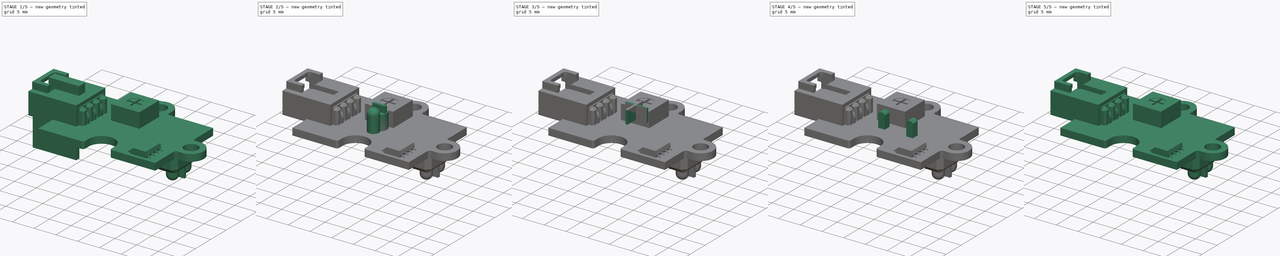
[diagram: build sequence overview — one tinted view per stage of 5, left to right]
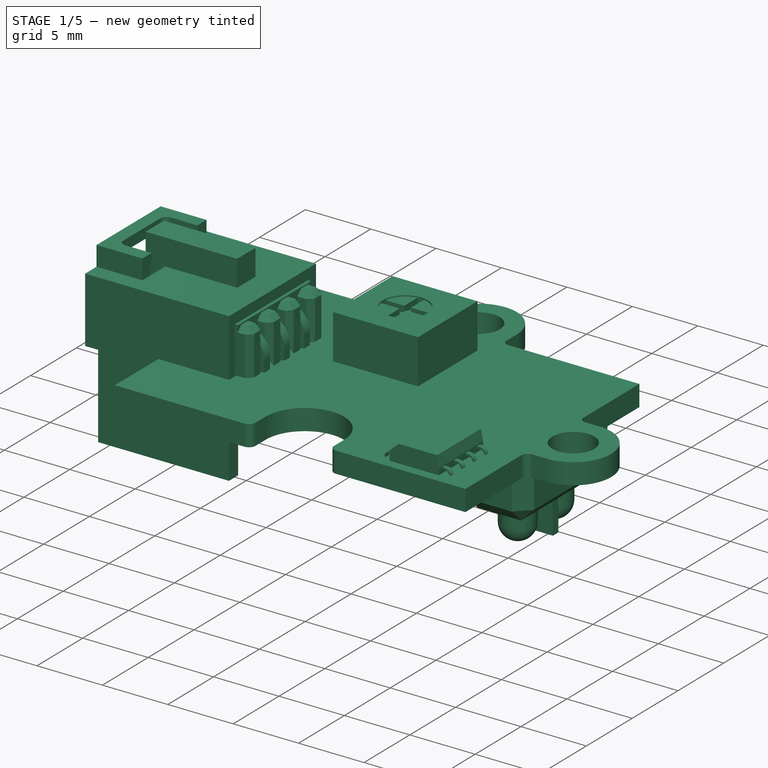
[diagram: stage 1 of 5 — iso view after this stage's code; geometry added in this stage tinted green]
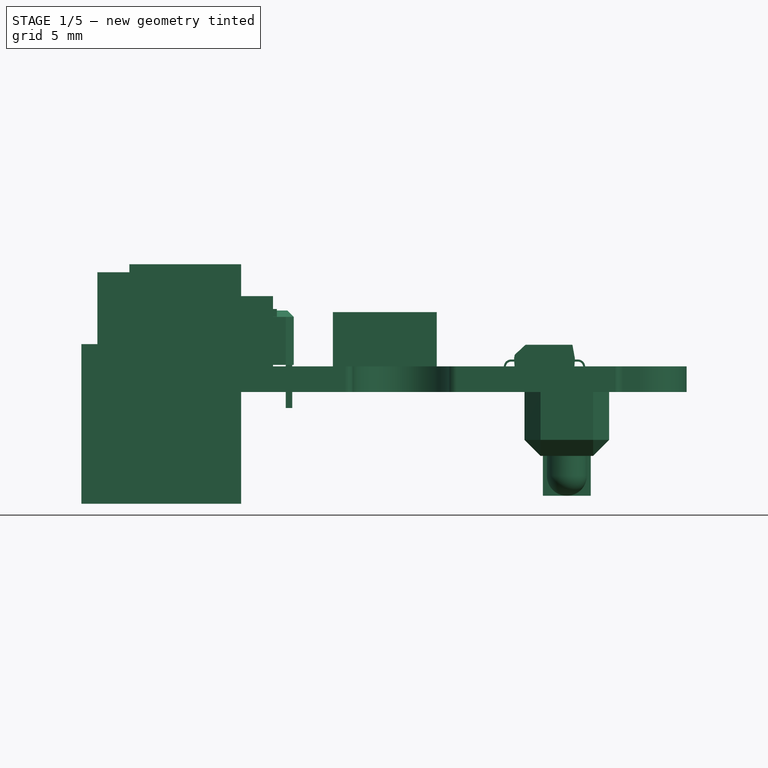
[diagram: stage 1 of 5 — front view after this stage's code; geometry added in this stage tinted green]
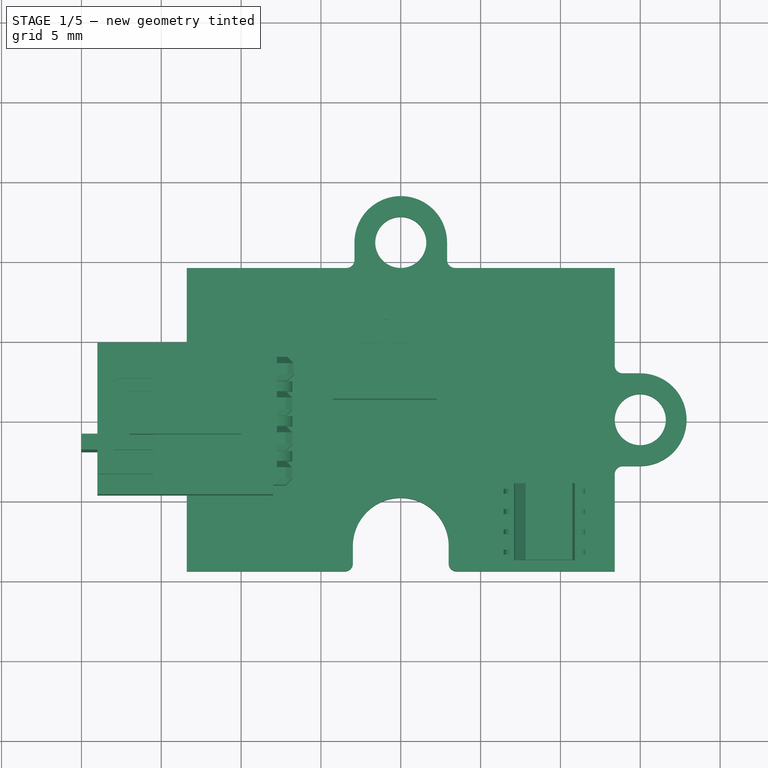
[diagram: stage 1 of 5 — top view after this stage's code; geometry added in this stage tinted green]
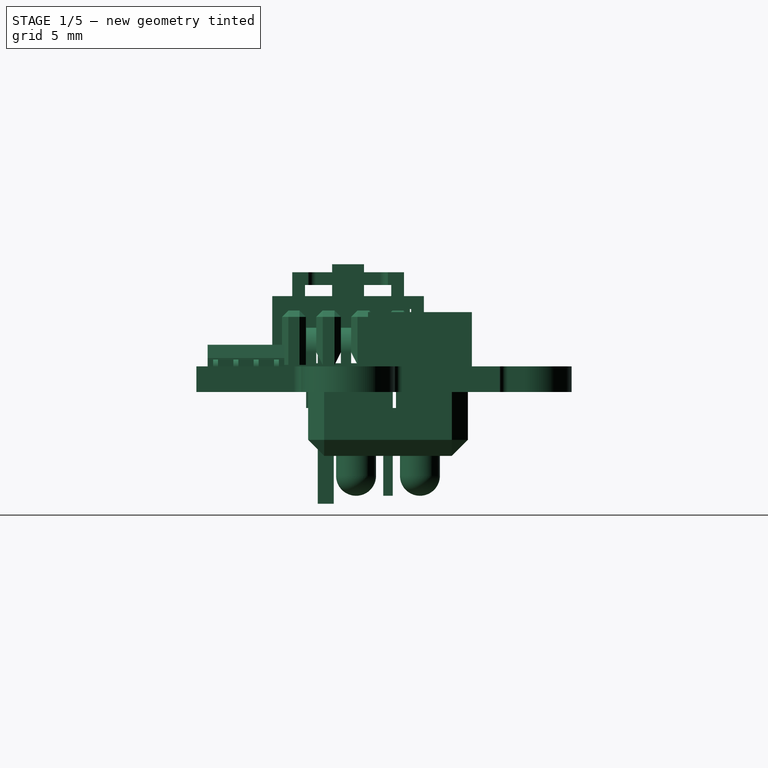
[diagram: stage 1 of 5 — right view after this stage's code; geometry added in this stage tinted green]
FCSTD DOCUMENT  (FreeCAD 0.14R3702 (Git))
Label: octopus-IR-sensor
License: CC-BY 3.0
LicenseURL: http://creativecommons.org/licenses/by/3.0/
objects: Part::Box×13, Part::MultiFuse×8, Part::Cut×7, Sketcher::SketchObject×5, Part::Chamfer×5, PartDesign::Pad×3, Part::FeaturePython×2, Part::Cylinder×2, Part::Compound×2, Part::Thickness×1, Part::Fillet×1, Part::Sweep×1
note: 53 computed .brp shape members not serialized (recipe doc carries the construction recipe); baked Part::Feature solids carry a one-line shape summary decoded from their .brp

FEATURE [Sketcher::SketchObject] Sketch
  sketch-geometry (14):
    g0: LineSegment StartX=-13.5 StartY=9.5 StartZ=0 EndX=-3.86432 EndY=9.5 EndZ=0
    g1: LineSegment StartX=13.5 StartY=9.5 StartZ=0 EndX=13.5 EndY=2.29783 EndZ=0
    g2: LineSegment StartX=13.5 StartY=-9.5 StartZ=0 EndX=1.09808 EndY=-9.5 EndZ=0
    g3: LineSegment StartX=-13.5 StartY=-9.5 StartZ=0 EndX=-13.5 EndY=-2.53772 EndZ=0
    g4: Circle CenterX=-1.5 CenterY=11 CenterZ=0 NormalX=0 NormalY=0 NormalZ=1 Radius=1.6
    g5: ArcOfCircle CenterX=-1.5 CenterY=11 CenterZ=0 NormalX=0 NormalY=0 NormalZ=1 Radius=2.8 StartAngle=5.71783 EndAngle=9.99013
    g6: LineSegment StartX=0.864318 StartY=9.5 StartZ=0 EndX=13.5 EndY=9.5 EndZ=0
    g7: Circle CenterX=15.1 CenterY=0 CenterZ=0 NormalX=0 NormalY=0 NormalZ=1 Radius=1.6
    g8: ArcOfCircle CenterX=15.1 CenterY=0 CenterZ=0 NormalX=0 NormalY=0 NormalZ=1 Radius=2.8 StartAngle=4.10414 EndAngle=8.46223
    g9: LineSegment StartX=13.5 StartY=-2.29783 StartZ=0 EndX=13.5 EndY=-9.5 EndZ=0
    g10: ArcOfCircle CenterX=-1.5 CenterY=-8 CenterZ=0 NormalX=0 NormalY=0 NormalZ=1 Radius=3 StartAngle=5.75959 EndAngle=9.94838
    g11: LineSegment StartX=-4.09808 StartY=-9.5 StartZ=0 EndX=-13.5 EndY=-9.5 EndZ=0
    g12: ArcOfCircle CenterX=-11.9 CenterY=0 CenterZ=0 NormalX=0 NormalY=0 NormalZ=1 Radius=3 StartAngle=4.14985 EndAngle=8.41652
    g13: LineSegment StartX=-13.5 StartY=2.53772 StartZ=0 EndX=-13.5 EndY=9.5 EndZ=0
  constraints (40):
    c: Coincident(g6,g1)
    c: Coincident(g9,g2)
    c: Coincident(g11,g3)
    c: Coincident(g13,g0)
    c: Horizontal(g0)
    c: Horizontal(g2)
    c: Vertical(g1)
    c: Vertical(g3)
    c: Symmetric(g0,g9,g-1)
    c: Radius(g4) = 1.6
    c: DistanceX(g4,g6) = 15
    c: Coincident(g5,g4)
    c: Radius(g5) = 2.8
    c: Tangent(g0,g6)
    c: Coincident(g0,g5)
    c: PointOnObject(g6,g5)
    c: DistanceY(g-1,g4) = 11
    c: DistanceX(g-1,g8) = 15.1
    c: Equal(g7,g4)
    c: Equal(g8,g5)
    c: Tangent(g1,g9)
    c: Coincident(g8,g9)
    c: Coincident(g8,g1)
    c: Coincident(g5,g6)
    c: Coincident(g7,g8)
    c: PointOnObject(g7,g-1)
    c: Radius(g10) = 3
    c: DistanceX(g-1,g2) = 13.5
    c: Tangent(g2,g11)
    c: DistanceX(g10,g2) = 15
    c: DistanceY(g-1,g10) = -8
    c: Coincident(g10,g2)
    c: Coincident(g10,g11)
    c: DistanceX(g-1,g12) = -11.9
    c: Radius(g12) = 3
    c: PointOnObject(g12,g-1)
    c: DistanceY(g-1,g3) = -9.5
    c: Tangent(g3,g13)
    c: Coincident(g12,g3)
    c: Coincident(g12,g13)
FEATURE [Sketcher::SketchObject] Sketch001
  Placement = pos=(-19,0,4) rot=(0.707107,0,0.707107;3.14159rad)
  sketch-geometry (16):
    g0: LineSegment StartX=-3 StartY=4.75 StartZ=0 EndX=-3 EndY=-4.75 EndZ=0
    g1: LineSegment StartX=-3 StartY=-4.75 StartZ=0 EndX=2 EndY=-4.75 EndZ=0
    g2: LineSegment StartX=2 StartY=-4.75 StartZ=0 EndX=2 EndY=-3.5 EndZ=0
    g3: LineSegment StartX=2 StartY=-3.5 StartZ=0 EndX=3.5 EndY=-3.5 EndZ=0
    g4: LineSegment StartX=3.5 StartY=-3.5 StartZ=0 EndX=3.5 EndY=3.5 EndZ=0
    g5: LineSegment StartX=3.5 StartY=3.5 StartZ=0 EndX=2 EndY=3.5 EndZ=0
    g6: LineSegment StartX=2 StartY=3.5 StartZ=0 EndX=2 EndY=4.75 EndZ=0
    g7: LineSegment StartX=2 StartY=4.75 StartZ=0 EndX=-3 EndY=4.75 EndZ=0
    g8: LineSegment StartX=-2.2 StartY=3.95 StartZ=0 EndX=1.2 EndY=3.95 EndZ=0
    g9: LineSegment StartX=1.2 StartY=3.95 StartZ=0 EndX=1.2 EndY=2.7 EndZ=0
    g10: LineSegment StartX=1.2 StartY=2.7 StartZ=0 EndX=2.7 EndY=2.7 EndZ=0
    g11: LineSegment StartX=2.7 StartY=2.7 StartZ=0 EndX=2.7 EndY=-2.7 EndZ=0
    g12: LineSegment StartX=2.7 StartY=-2.7 StartZ=0 EndX=1.2 EndY=-2.7 EndZ=0
    g13: LineSegment StartX=1.2 StartY=-2.7 StartZ=0 EndX=1.2 EndY=-3.95 EndZ=0
    g14: LineSegment StartX=1.2 StartY=-3.95 StartZ=0 EndX=-2.2 EndY=-3.95 EndZ=0
    g15: LineSegment StartX=-2.2 StartY=-3.95 StartZ=0 EndX=-2.2 EndY=3.95 EndZ=0
  constraints (45):
    c: Vertical(g0)
    c: Coincident(g0,g1)
    c: Horizontal(g1)
    c: Coincident(g1,g2)
    c: Coincident(g2,g3)
    c: Coincident(g3,g4)
    c: Vertical(g4)
    c: Coincident(g4,g5)
    c: Coincident(g5,g6)
    c: Vertical(g6)
    c: Coincident(g6,g7)
    c: Coincident(g7,g0)
    c: Horizontal(g7)
    c: Symmetric(g6,g1,g-1)
    c: Symmetric(g5,g2,g-1)
    c: Symmetric(g4,g3,g-1)
    c: Horizontal(g5)
    c: DistanceX(g7) = -5
    c: DistanceX(g5) = -1.5
    c: DistanceY(g0) = -9.5
    c: DistanceY(g4) = 7
    c: DistanceX(g-1,g0) = -3
    c: Horizontal(g8)
    c: Coincident(g8,g9)
    c: Vertical(g9)
    c: Coincident(g9,g10)
    c: Horizontal(g10)
    c: Coincident(g10,g11)
    c: Vertical(g11)
    c: Coincident(g11,g12)
    c: Horizontal(g12)
    c: Coincident(g12,g13)
    c: Vertical(g13)
    c: Coincident(g13,g14)
    c: Horizontal(g14)
    c: Coincident(g14,g15)
    c: Coincident(g15,g8)
    c: Vertical(g15)
    c: Symmetric(g8,g13,g-1)
    c: Symmetric(g9,g12,g-1)
    c: DistanceY(g0,g8) = -0.8
    c: DistanceX(g8,g5) = 0.8
    c: DistanceY(g5,g9) = -0.8
    c: DistanceX(g10,g4) = 0.8
    c: DistanceX(g0,g8) = 0.8
FEATURE [PartDesign::Pad] Pad001
  Length = 3.5
  Length2 = 100
  Placement = pos=(-19,0,4) rot=(0.707107,0,0.707107;3.14159rad)
  Sketch = -> Sketch001
  Type = 0
FEATURE [Part::Box] Box  label="Cubo"
  Height = 5
  Length = 5
  Placement = pos=(-18,-2.5,6.5) rot=(0,0,1;0rad)
  Width = 5
FEATURE [Part::Fillet] Fillet006
  Base = -> Box
  Edges = 2 edges r=0.5: [Edge1,Edge3]
FEATURE [Part::Cut] Cut
  Base = -> Pad001
  Tool = -> Fillet006
FEATURE [Part::Box] Box002  label="Cubo002"
  Height = 3
  Length = 7
  Placement = pos=(-17,-1,5) rot=(0,0,1;0rad)
  Width = 2
FEATURE [Part::Chamfer] Chamfer
  Base = -> Cut
  Edges = 8 edges r=0.1: [Edge16,Edge17,Edge18,Edge19,Edge20,Edge21,Edge22,Edge23]
FEATURE [Part::Box] Box014  label="slot"
  Height = 10
  Length = 10
  Placement = pos=(-20,-1.9,-7) rot=(0,0,1;0rad)
  Width = 1
FEATURE [Sketcher::SketchObject] Sketch004  label="octopus-pcb-base-sketch"
  sketch-geometry (36):
    g0: LineSegment StartX=-13.4 StartY=9.5 StartZ=0 EndX=-3.4 EndY=9.5 EndZ=0
    g1: LineSegment StartX=13.4 StartY=9.5 StartZ=0 EndX=13.4 EndY=3.4 EndZ=0
    g2: LineSegment StartX=13.4 StartY=-9.5 StartZ=0 EndX=3.5 EndY=-9.5 EndZ=0
    g3: LineSegment StartX=-13.4 StartY=-9.5 StartZ=0 EndX=-13.4 EndY=-3.5 EndZ=0
    g4: Circle CenterX=0 CenterY=11.1 CenterZ=0 NormalX=0 NormalY=0 NormalZ=1 Radius=1.6
    g5: LineSegment StartX=3.4 StartY=9.5 StartZ=0 EndX=13.4 EndY=9.5 EndZ=0
    g6: Circle CenterX=15 CenterY=0 CenterZ=0 NormalX=0 NormalY=0 NormalZ=1 Radius=1.6
    g7: LineSegment StartX=13.4 StartY=-3.4 StartZ=0 EndX=13.4 EndY=-9.5 EndZ=0
    g8: LineSegment StartX=-3.5 StartY=-9.5 StartZ=0 EndX=-13.4 EndY=-9.5 EndZ=0
    g9: LineSegment StartX=-13.4 StartY=3.5 StartZ=0 EndX=-13.4 EndY=9.5 EndZ=0
    g10: LineSegment [constr] StartX=-2.9 StartY=11.1 StartZ=0 EndX=2.9 EndY=11.1 EndZ=0
    g11: ArcOfCircle CenterX=0 CenterY=11.1 CenterZ=0 NormalX=0 NormalY=0 NormalZ=1 Radius=2.9 StartAngle=0 EndAngle=3.14159
    g12: LineSegment StartX=2.9 StartY=11.1 StartZ=0 EndX=2.9 EndY=10 EndZ=0
    g13: LineSegment StartX=-2.9 StartY=11.1 StartZ=0 EndX=-2.9 EndY=10 EndZ=0
    g14: LineSegment [constr] StartX=15 StartY=2.9 StartZ=0 EndX=15 EndY=-2.9 EndZ=0
    g15: LineSegment StartX=13.9 StartY=2.9 StartZ=0 EndX=15 EndY=2.9 EndZ=0
    g16: LineSegment StartX=13.9 StartY=-2.9 StartZ=0 EndX=15 EndY=-2.9 EndZ=0
    g17: ArcOfCircle CenterX=15 CenterY=0 CenterZ=0 NormalX=0 NormalY=0 NormalZ=1 Radius=2.9 StartAngle=4.71239 EndAngle=7.85398
    g18: LineSegment [constr] StartX=-3 StartY=-7.9 StartZ=0 EndX=3 EndY=-7.9 EndZ=0
    g19: ArcOfCircle CenterX=0 CenterY=-7.9 CenterZ=0 NormalX=0 NormalY=0 NormalZ=1 Radius=3 StartAngle=0 EndAngle=3.14159
    g20: Circle [constr] CenterX=0 CenterY=-7.9 CenterZ=0 NormalX=0 NormalY=0 NormalZ=1 Radius=1.6
    g21: LineSegment StartX=-3 StartY=-7.9 StartZ=0 EndX=-3 EndY=-9 EndZ=0
    g22: LineSegment StartX=3 StartY=-7.9 StartZ=0 EndX=3 EndY=-9 EndZ=0
    g23: ArcOfCircle CenterX=-11.8 CenterY=0 CenterZ=0 NormalX=0 NormalY=0 NormalZ=1 Radius=3 StartAngle=4.71239 EndAngle=7.85398
    g24: LineSegment [constr] StartX=-11.8 StartY=3 StartZ=0 EndX=-11.8 EndY=-3 EndZ=0
    g25: LineSegment StartX=-12.9 StartY=3 StartZ=0 EndX=-11.8 EndY=3 EndZ=0
    g26: LineSegment StartX=-12.9 StartY=-3 StartZ=0 EndX=-11.8 EndY=-3 EndZ=0
    g27: Circle [constr] CenterX=-11.8 CenterY=0 CenterZ=0 NormalX=0 NormalY=0 NormalZ=1 Radius=1.6
    g28: ArcOfCircle CenterX=3.4 CenterY=10 CenterZ=0 NormalX=0 NormalY=0 NormalZ=1 Radius=0.5 StartAngle=3.14159 EndAngle=4.71239
    g29: ArcOfCircle CenterX=-3.4 CenterY=10 CenterZ=0 NormalX=0 NormalY=0 NormalZ=1 Radius=0.5 StartAngle=4.71239 EndAngle=6.28319
    g30: ArcOfCircle CenterX=13.9 CenterY=3.4 CenterZ=0 NormalX=0 NormalY=0 NormalZ=1 Radius=0.5 StartAngle=3.14159 EndAngle=4.71239
    g31: ArcOfCircle CenterX=13.9 CenterY=-3.4 CenterZ=0 NormalX=0 NormalY=0 NormalZ=1 Radius=0.5 StartAngle=1.5708 EndAngle=3.14159
    g32: ArcOfCircle CenterX=3.5 CenterY=-9 CenterZ=0 NormalX=0 NormalY=0 NormalZ=1 Radius=0.5 StartAngle=3.14159 EndAngle=4.71239
    g33: ArcOfCircle CenterX=-3.5 CenterY=-9 CenterZ=0 NormalX=0 NormalY=0 NormalZ=1 Radius=0.5 StartAngle=4.71239 EndAngle=6.28319
    g34: ArcOfCircle CenterX=-12.9 CenterY=-3.5 CenterZ=0 NormalX=0 NormalY=0 NormalZ=1 Radius=0.5 StartAngle=1.5708 EndAngle=3.14159
    g35: ArcOfCircle CenterX=-12.9 CenterY=3.5 CenterZ=0 NormalX=0 NormalY=0 NormalZ=1 Radius=0.5 StartAngle=3.14159 EndAngle=4.71239
  constraints (94):
    c: Coincident(g5,g1)
    c: Coincident(g7,g2)
    c: Coincident(g8,g3)
    c: Coincident(g9,g0)
    c: Horizontal(g0)
    c: Horizontal(g2)
    c: Vertical(g1)
    c: Vertical(g3)
    c: Radius(g4) = 1.6
    c: Tangent(g0,g5)
    c: Equal(g6,g4)
    c: Tangent(g1,g7)
    c: PointOnObject(g6,g-1)
    c: Tangent(g2,g8)
    c: Tangent(g3,g9)
    c: PointOnObject(g4,g-2)
    c: Symmetric(g1,g2,g-1)
    c: Symmetric(g1,g0,g-2)
    c: Tangent(g5,g4)
    c: Symmetric(g10,g10,g-2)
    c: PointOnObject(g4,g10)
    c: Coincident(g11,g10)
    c: Coincident(g10,g11)
    c: Coincident(g11,g4)
    c: Vertical(g12)
    c: Coincident(g12,g10)
    c: Vertical(g13)
    c: Coincident(g13,g10)
    c: DistanceX(g10,g10) = 5.8
    c: Vertical(g14)
    c: PointOnObject(g6,g14)
    c: Symmetric(g14,g14,g-1)
    c: Tangent(g6,g1)
    c: Horizontal(g15)
    c: Coincident(g15,g14)
    c: Horizontal(g16)
    c: Coincident(g16,g14)
    c: Equal(g10,g14)
    c: Coincident(g17,g6)
    c: Coincident(g17,g14)
    c: Coincident(g17,g14)
    c: Horizontal(g18)
    c: Symmetric(g18,g18,g-2)
    c: DistanceX(g18) = 6
    c: Coincident(g19,g18)
    c: Coincident(g19,g18)
    c: PointOnObject(g19,g18)
    c: PointOnObject(g20,g-2)
    c: Tangent(g20,g2)
    c: Coincident(g19,g20)
    c: Equal(g20,g4)
    c: Vertical(g22)
    c: Vertical(g21)
    c: Coincident(g21,g18)
    c: Coincident(g22,g18)
    c: PointOnObject(g23,g-1)
    c: Symmetric(g24,g24,g-1)
    c: Coincident(g24,g23)
    c: Coincident(g23,g24)
    c: Equal(g24,g18)
    c: PointOnObject(g23,g24)
    c: Horizontal(g25)
    c: Horizontal(g26)
    c: Coincident(g27,g23)
    c: Equal(g27,g20)
    c: Tangent(g27,g9)
    c: Coincident(g25,g23)
    c: Coincident(g26,g23)
    c: DistanceY(g1,g2) = -19
    c: DistanceX(g0,g1) = 26.8
    c: Tangent(g5,g28)
    c: Tangent(g12,g28)
    c: Radius(g28) = 0.5
    c: Tangent(g0,g29)
    c: Tangent(g13,g29)
    c: Equal(g29,g28)
    c: Tangent(g1,g30)
    c: Tangent(g15,g30)
    c: Tangent(g7,g31)
    c: Tangent(g16,g31)
    c: Equal(g28,g30)
    c: Equal(g30,g31)
    c: Tangent(g2,g32)
    c: Tangent(g22,g32)
    c: Tangent(g8,g33)
    c: Tangent(g21,g33)
    c: Equal(g31,g32)
    c: Equal(g32,g33)
    c: Tangent(g3,g34)
    c: Tangent(g26,g34)
    c: Tangent(g9,g35)
    c: Tangent(g25,g35)
    c: Equal(g35,g34)
    c: Equal(g34,g33)
FEATURE [PartDesign::Pad] Pad003  label="octopus-pcb-base"
  Length = 1.6
  Length2 = 100
  Sketch = -> Sketch004
  Type = 0
FEATURE [Part::Compound] Compound001  label="octopus-IR-sensor-final"
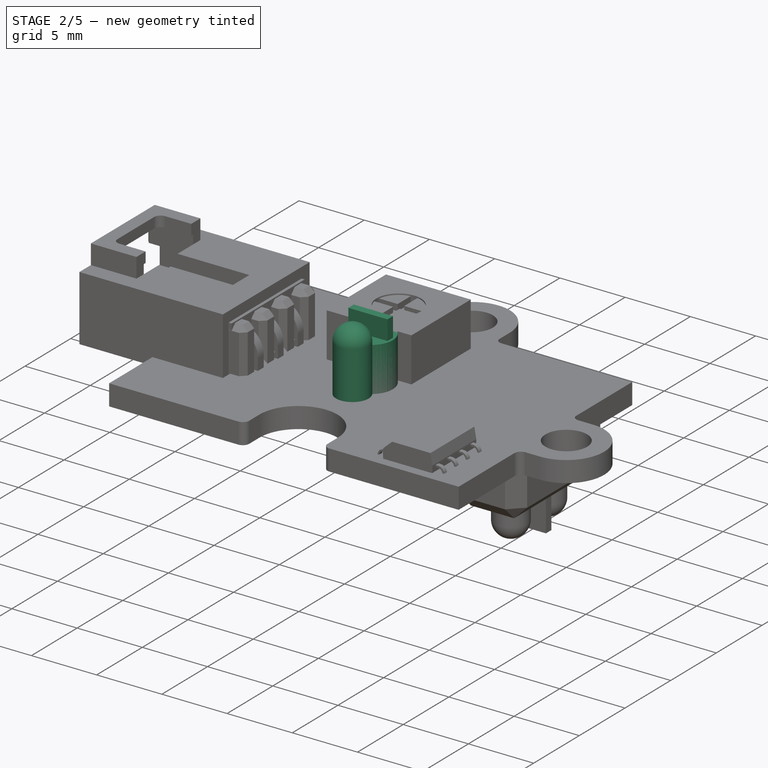
[diagram: stage 2 of 5 — iso view after this stage's code; geometry added in this stage tinted green]
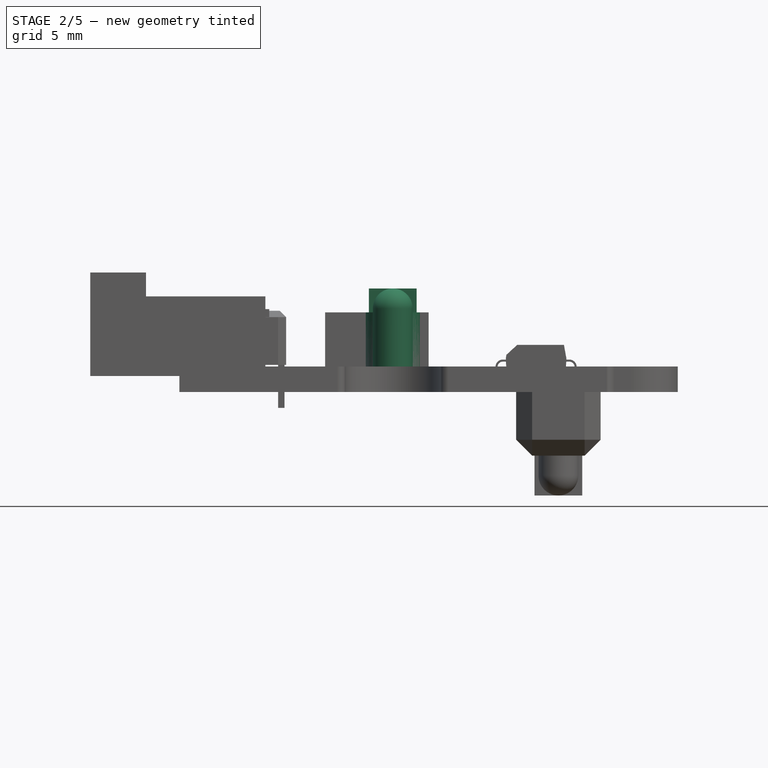
[diagram: stage 2 of 5 — front view after this stage's code; geometry added in this stage tinted green]
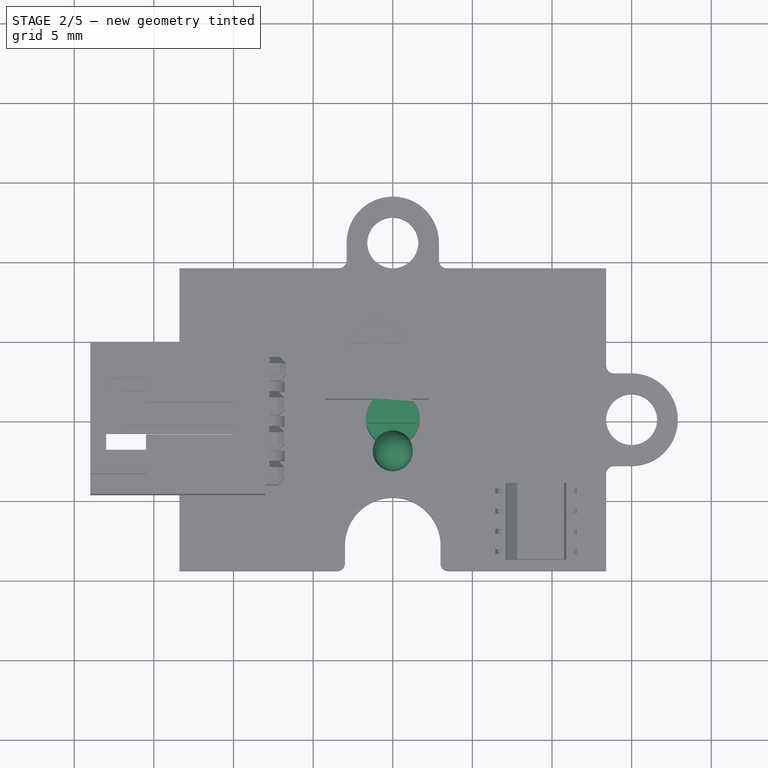
[diagram: stage 2 of 5 — top view after this stage's code; geometry added in this stage tinted green]
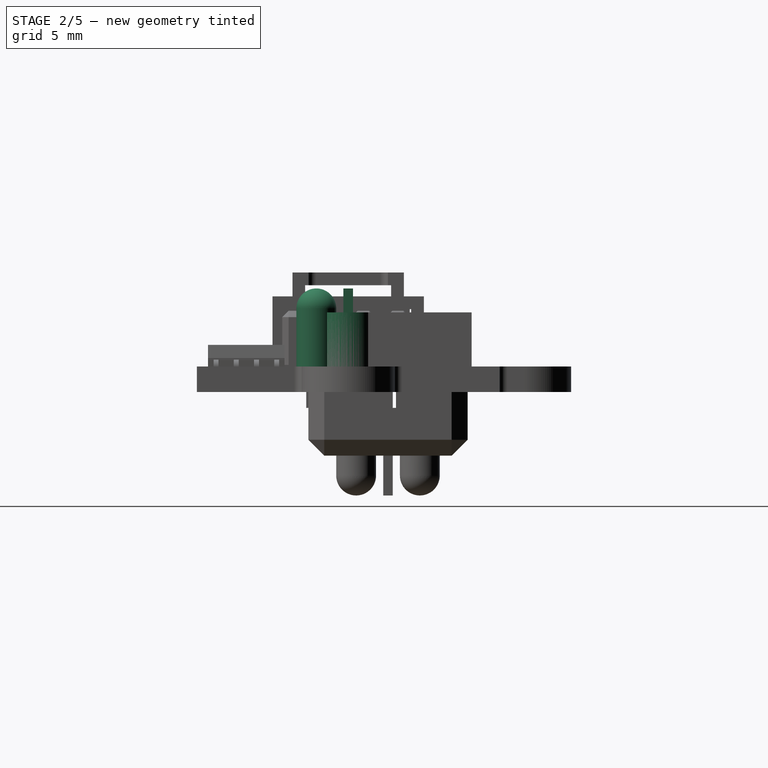
[diagram: stage 2 of 5 — right view after this stage's code; geometry added in this stage tinted green]
FEATURE [Part::Box] Box001  label="Cubo001"
  Height = 5
  Length = 7.5
  Width = 9.5
FEATURE [Part::Thickness] Thickness001
  Faces = -> Box001 [Face2,Face1]
  Intersection = false
  Join = 2
  Mode = 1
  Placement = pos=(-15.5,-4.75,1) rot=(0,0,1;0rad)
  SelfIntersection = false
  Value = -0.8
FEATURE [Part::Cut] Cut001
  Base = -> Thickness001
  Tool = -> Box002
FEATURE [Part::MultiFuse] Fusion  label="connector"
  Shapes = -> [Cut001,Chamfer]
FEATURE [Part::Cylinder] Cylinder  label="Cilindro"
  Angle = 360
  Height = 3.9
  Radius = 1.7
FEATURE [Part::Cylinder] Cylinder001  label="Cilindro001"
  Angle = 360
  Height = 5
  Radius = 1.7
FEATURE [Part::Box] Box013  label="Separador"
  Height = 6.5
  Length = 3
  Placement = pos=(-1.5,-0.3,0) rot=(0,0,1;0rad)
  Width = 0.6
FEATURE [Part::MultiFuse] Fusion007  label="Emisor"
  Placement = pos=(0,-2,0) rot=(0,0,1;0rad)
  Shapes = -> [Cylinder]
FEATURE [Part::Cut] Cut006  label="connector-final"
  Base = -> Fusion
  Tool = -> Box014
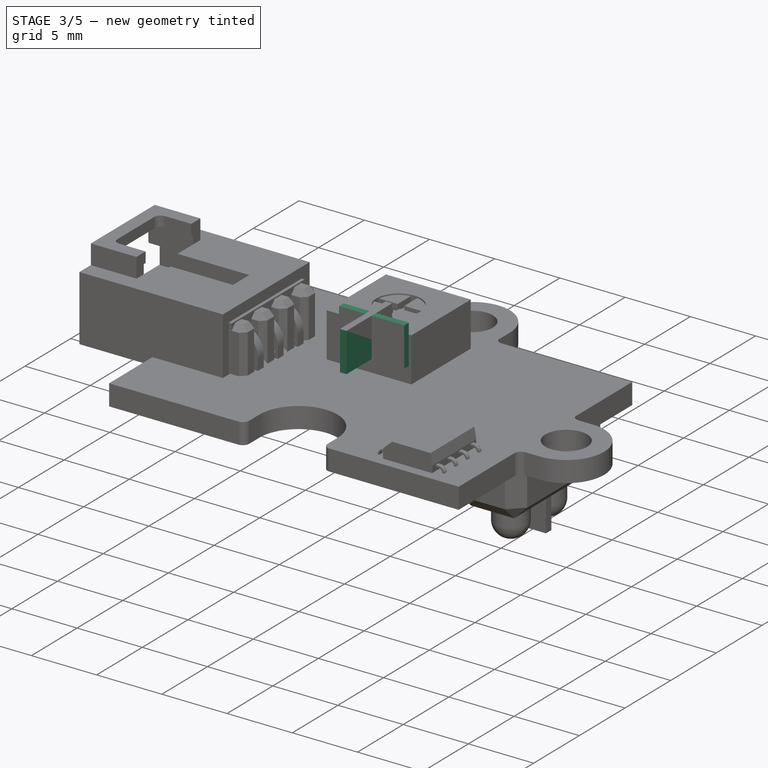
[diagram: stage 3 of 5 — iso view after this stage's code; geometry added in this stage tinted green]
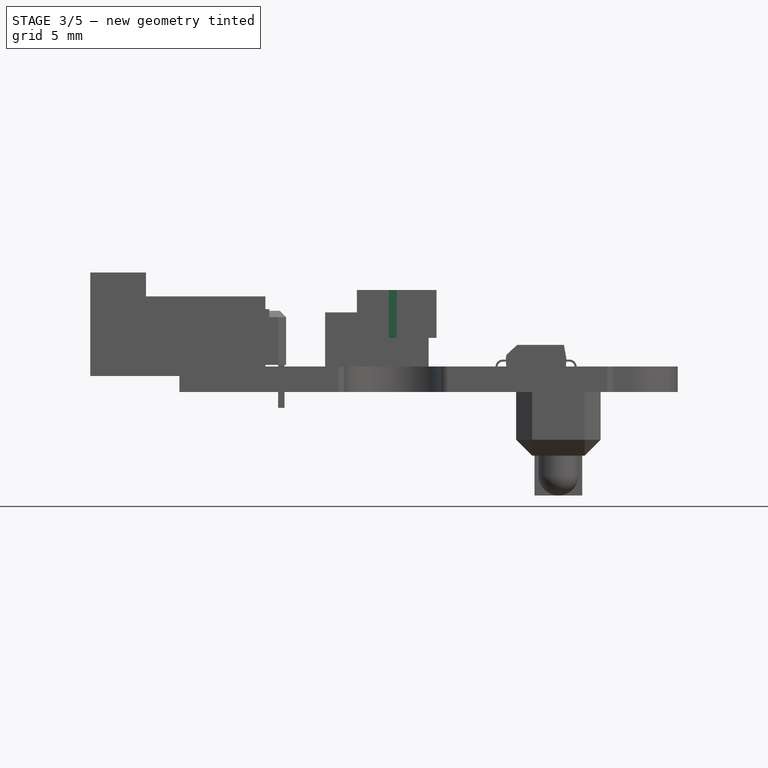
[diagram: stage 3 of 5 — front view after this stage's code; geometry added in this stage tinted green]
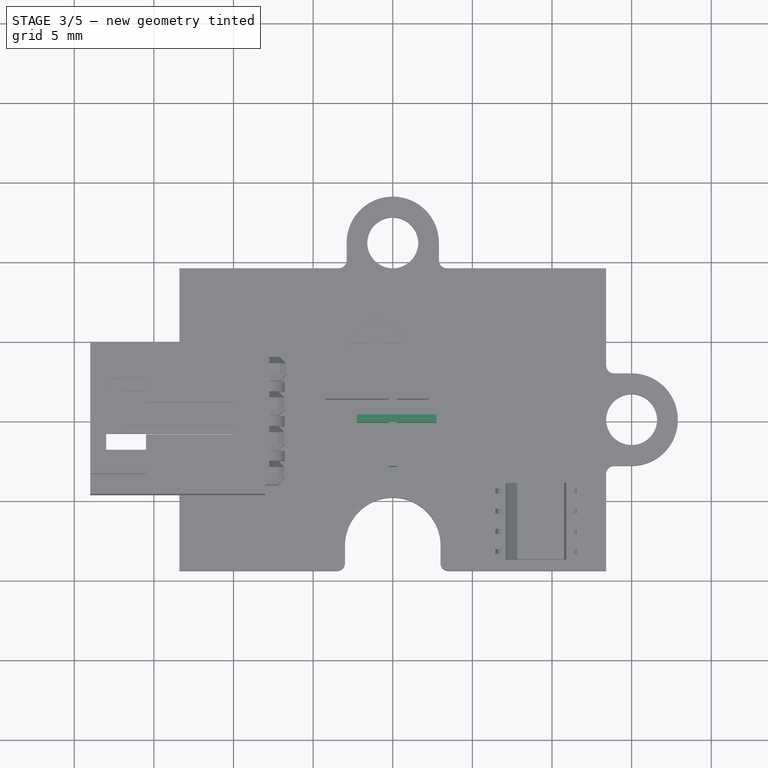
[diagram: stage 3 of 5 — top view after this stage's code; geometry added in this stage tinted green]
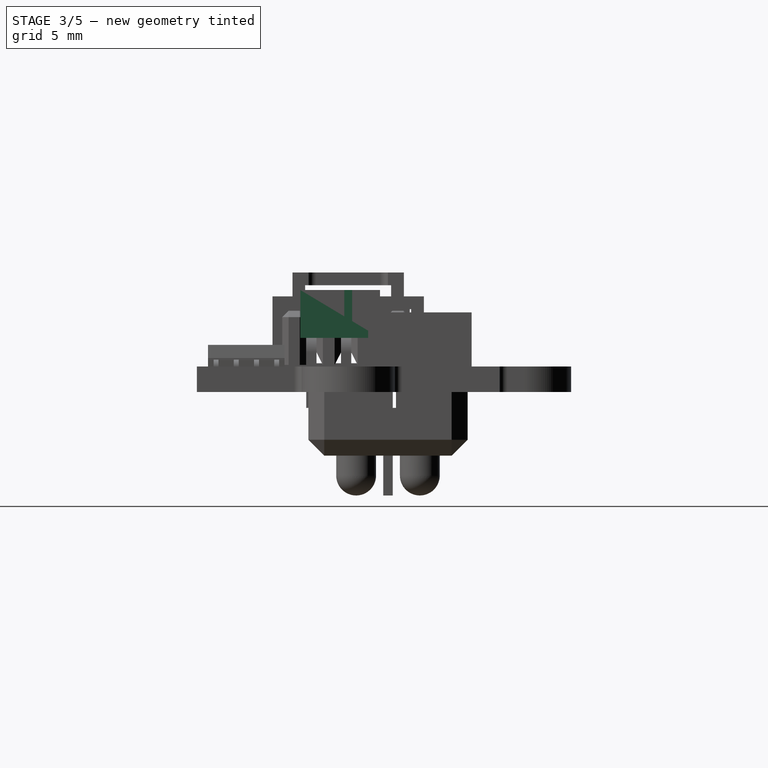
[diagram: stage 3 of 5 — right view after this stage's code; geometry added in this stage tinted green]
FEATURE [Sketcher::SketchObject] Sketch002
  sketch-geometry (4):
    g0: LineSegment StartX=-0.32 StartY=0.2 StartZ=0 EndX=0.32 EndY=0.2 EndZ=0
    g1: LineSegment StartX=0.32 StartY=0.2 StartZ=0 EndX=0.32 EndY=-0.2 EndZ=0
    g2: LineSegment StartX=0.32 StartY=-0.2 StartZ=0 EndX=-0.32 EndY=-0.2 EndZ=0
    g3: LineSegment StartX=-0.32 StartY=-0.2 StartZ=0 EndX=-0.32 EndY=0.2 EndZ=0
  constraints (12):
    c: Coincident(g0,g1)
    c: Coincident(g1,g2)
    c: Coincident(g2,g3)
    c: Coincident(g3,g0)
    c: Horizontal(g0)
    c: Horizontal(g2)
    c: Vertical(g1)
    c: Vertical(g3)
    c: Symmetric(g0,g0,g-2)
    c: Symmetric(g0,g2,g-1)
    c: DistanceX(g0) = 0.64
    c: DistanceY(g3) = 0.4
FEATURE [Sketcher::SketchObject] Sketch003
  Placement = pos=(0,0,0) rot=(0.57735,0.57735,0.57735;2.0944rad)
  sketch-geometry (3):
    g0: LineSegment StartX=0 StartY=0 StartZ=0 EndX=0 EndY=3.48702 EndZ=0
    g1: LineSegment StartX=-1.51298 StartY=5 StartZ=0 EndX=-10 EndY=5 EndZ=0
    g2: ArcOfCircle CenterX=-1.51298 CenterY=3.48702 CenterZ=0 NormalX=0 NormalY=0 NormalZ=1 Radius=1.51298 StartAngle=0 EndAngle=1.5708
  constraints (8):
    c: Coincident(g0,g-1)
    c: Vertical(g0)
    c: Horizontal(g1)
    c: Tangent(g1,g2)
    c: Tangent(g0,g2)
    c: DistanceY(g-1,g1) = 5
    c: DistanceX(g-1,g1) = -10
    c: Radius(g2) = 1.51298
FEATURE [Part::Sweep] Sweep
  Frenet = false
  Placement = pos=(-0.05,0,-1) rot=(0,0,1;0rad)
  Sections = -> [Sketch002]
  Solid = true
  Spine = -> Sketch003 [Edge1,Edge2,Edge3]
  Transition = 1
FEATURE [Part::Box] Box011  label="Cubo011"
  Height = 3
  Length = 0.5
  Placement = pos=(2.75,-0.25,3.4) rot=(0,0,1;1.5708rad)
  Width = 5
FEATURE [Part::Box] Box012  label="Cubo012"
  Height = 3
  Length = 0.5
  Placement = pos=(-0.25,-3,3.4) rot=(0,0,1;0rad)
  Width = 5
FEATURE [Part::FeaturePython] Array  # Draft array (typed FeaturePython)
  Angle = 360
  ArrayType = 0
  Axis = (0,0,1)
  Base = -> Sweep
  Center = (0,0,0)
  IntervalX = (1,0,0)
  IntervalY = (0,1.27,0)
  IntervalZ = (0,0,1)
  NumberPolar = 1
  NumberX = 1
  NumberY = 4
  NumberZ = 1
  Placement = pos=(0,-4.3,0) rot=(0,0,1;0rad)
FEATURE [PartDesign::Pad] Pad002
  Length = 4.8
  Length2 = 100
  Placement = pos=(0,0,0) rot=(1,0,0;1.5708rad)
  Sketch = -> Sketch
  Type = 0
FEATURE [Part::MultiFuse] Fusion004  label="LM358"
  Placement = pos=(9,-4,2) rot=(0,0,1;0rad)
  Shapes = -> [Pad002,Array]
FEATURE [Part::Cut] Cut005  label="Cuerpo"
  Base = -> Cut
FEATURE [Part::MultiFuse] Fusion006  label="Receptor"
  Placement = pos=(0,2,0) rot=(0,0,1;0rad)
  Shapes = -> [Cylinder001]
FEATURE [Part::MultiFuse] Fusion005  label="Sensor"
  Placement = pos=(10.4,2.5,0) rot=(0,1,0;3.14159rad)
  Shapes = -> [Fusion007,Box013,Fusion006,Cut005]
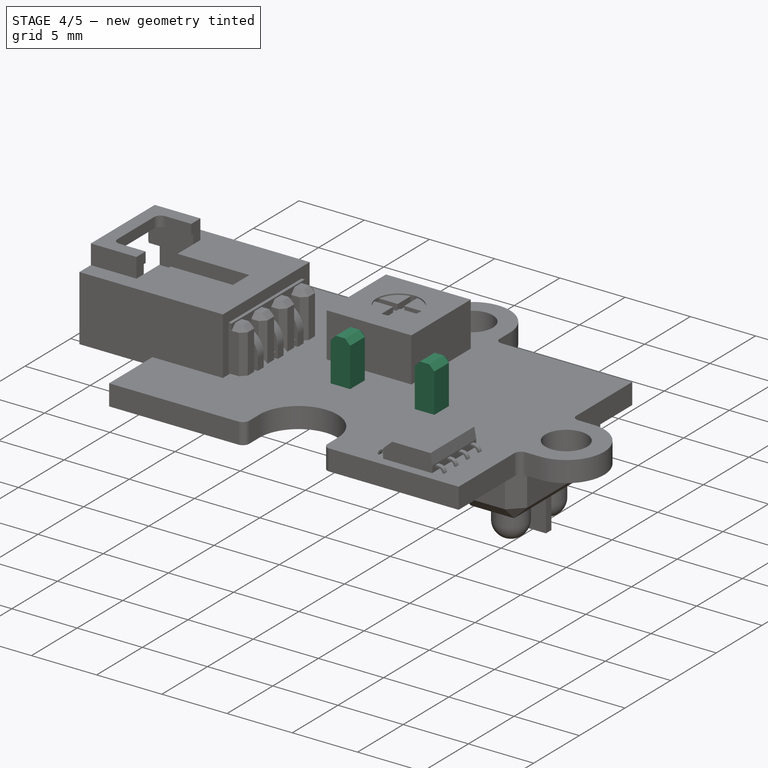
[diagram: stage 4 of 5 — iso view after this stage's code; geometry added in this stage tinted green]
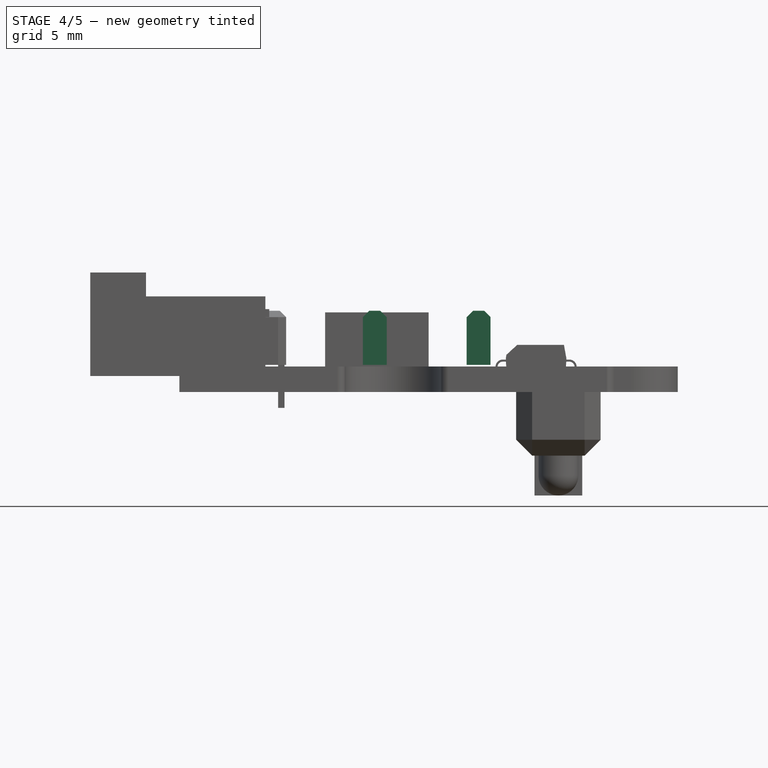
[diagram: stage 4 of 5 — front view after this stage's code; geometry added in this stage tinted green]
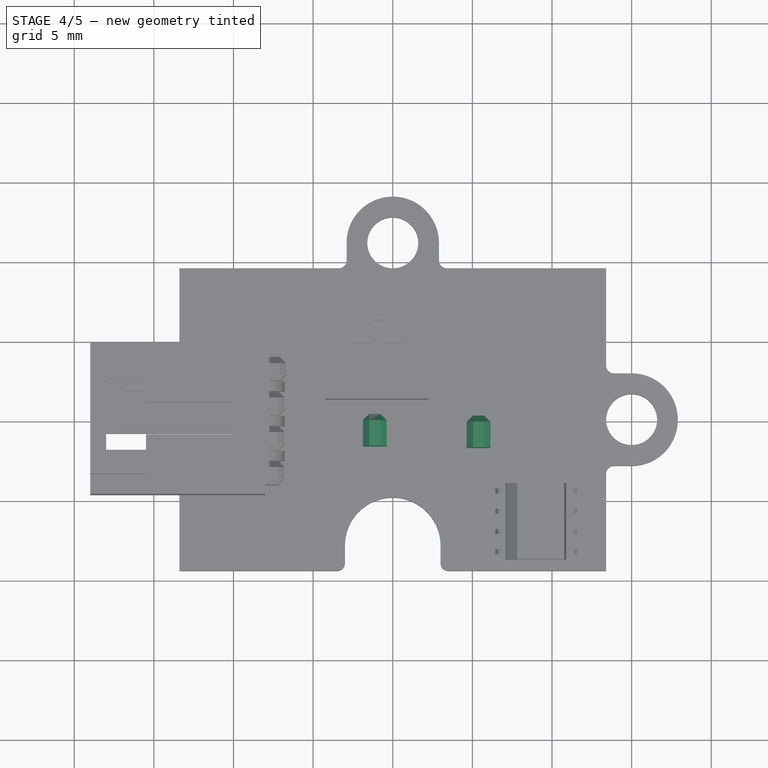
[diagram: stage 4 of 5 — top view after this stage's code; geometry added in this stage tinted green]
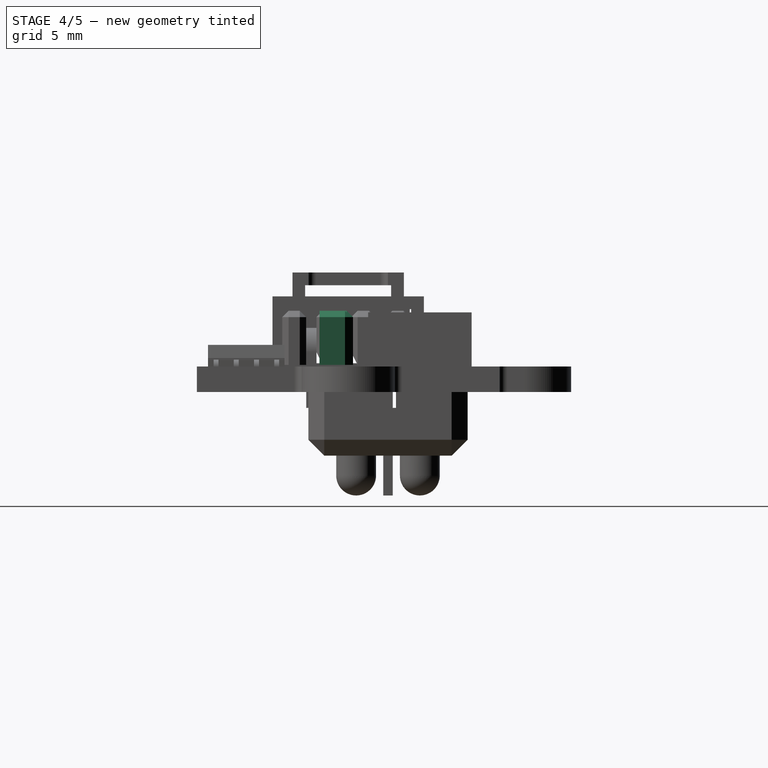
[diagram: stage 4 of 5 — right view after this stage's code; geometry added in this stage tinted green]
FEATURE [Part::Box] Box006  label="Cubo006"
  Height = 3.4
  Length = 1.5
  Placement = pos=(-1.14,-16.5,1.4) rot=(0,0,1;0rad)
  Width = 2
FEATURE [Part::Chamfer] Chamfer004
  Base = -> Box006
  Edges = 5 edges r=0.4: [Edge2,Edge3,Edge6,Edge7,Edge12]
  Placement = pos=(-0.74,14.8,0.3) rot=(0,0,1;0rad)
FEATURE [Part::Box] Box007  label="Cubo007"
  Height = 3.4
  Length = 1.5
  Placement = pos=(-1.14,-16.5,1.4) rot=(0,0,1;0rad)
  Width = 2
FEATURE [Part::Chamfer] Chamfer005
  Base = -> Box007
  Edges = 5 edges r=0.4: [Edge2,Edge3,Edge6,Edge7,Edge12]
  Placement = pos=(5.78,14.7,0.3) rot=(0,0,1;0rad)
FEATURE [Part::Box] Box010  label="Cubo010"
  Height = 4
  Length = 6.5
  Placement = pos=(-3.25,-3.25,0) rot=(0,0,1;0rad)
  Width = 6.5
FEATURE [Part::Cut] Cut002
  Base = -> Box010
  Tool = -> Cylinder001
FEATURE [Part::Cut] Cut003
  Base = -> Cylinder
  Tool = -> Box012
FEATURE [Part::Cut] Cut004
  Base = -> Cut003
  Tool = -> Box011
FEATURE [Part::MultiFuse] Fusion003  label="potentiometer"
  Placement = pos=(-1,4.5,1) rot=(0,0,1;0rad)
  Shapes = -> [Cut002,Cut004]
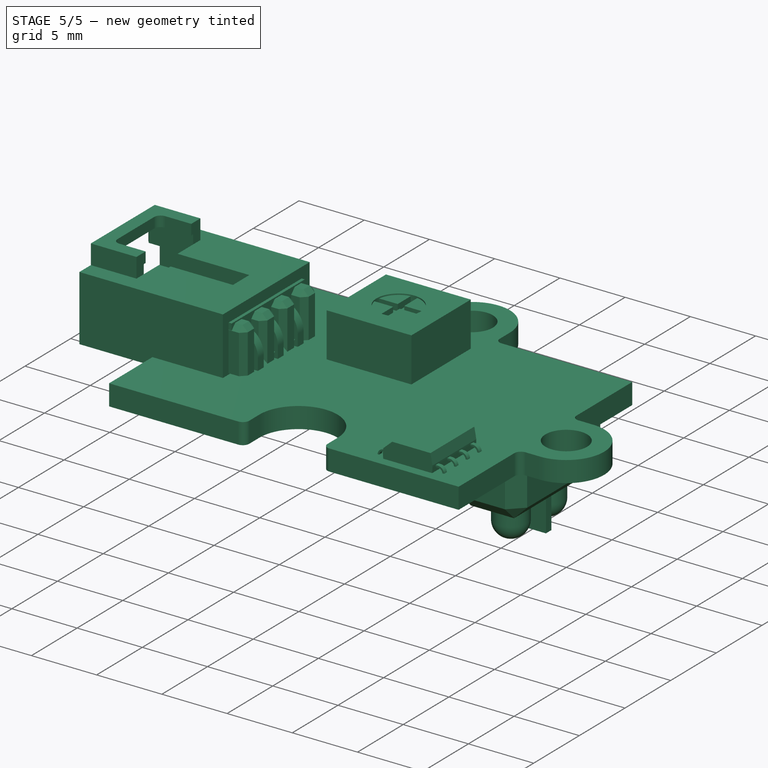
[diagram: stage 5 of 5 — iso view after this stage's code; geometry added in this stage tinted green]
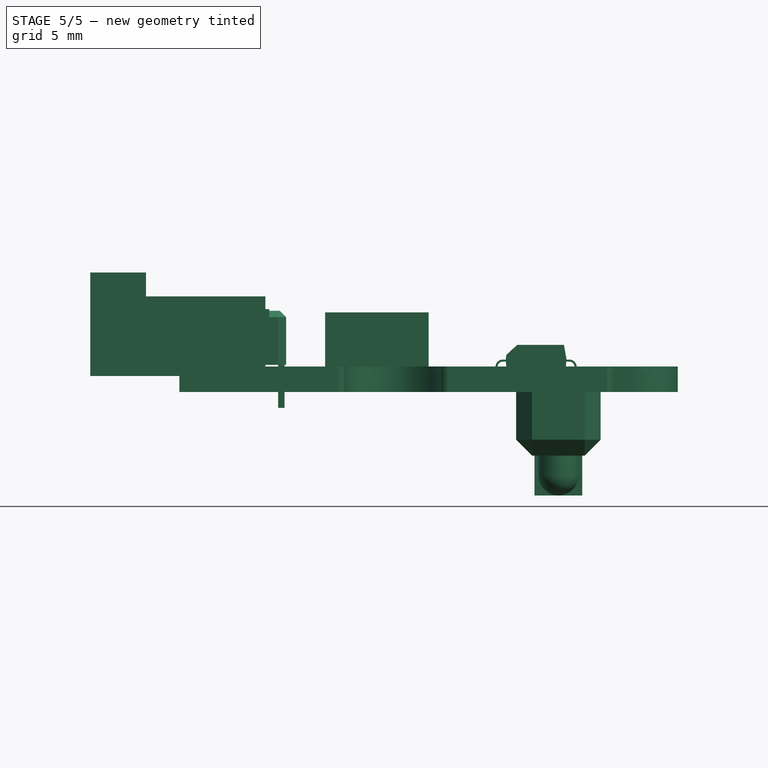
[diagram: stage 5 of 5 — front view after this stage's code; geometry added in this stage tinted green]
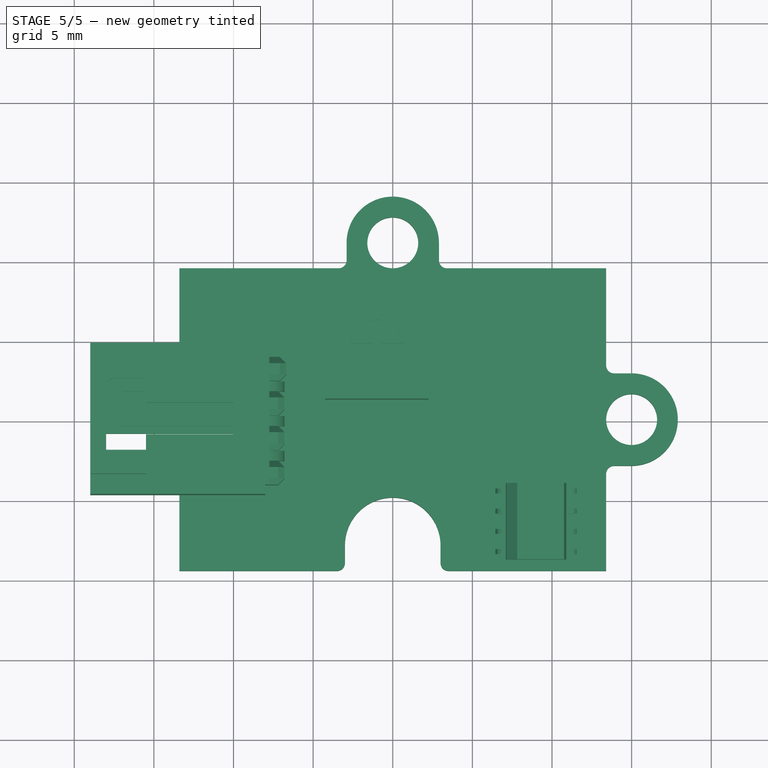
[diagram: stage 5 of 5 — top view after this stage's code; geometry added in this stage tinted green]
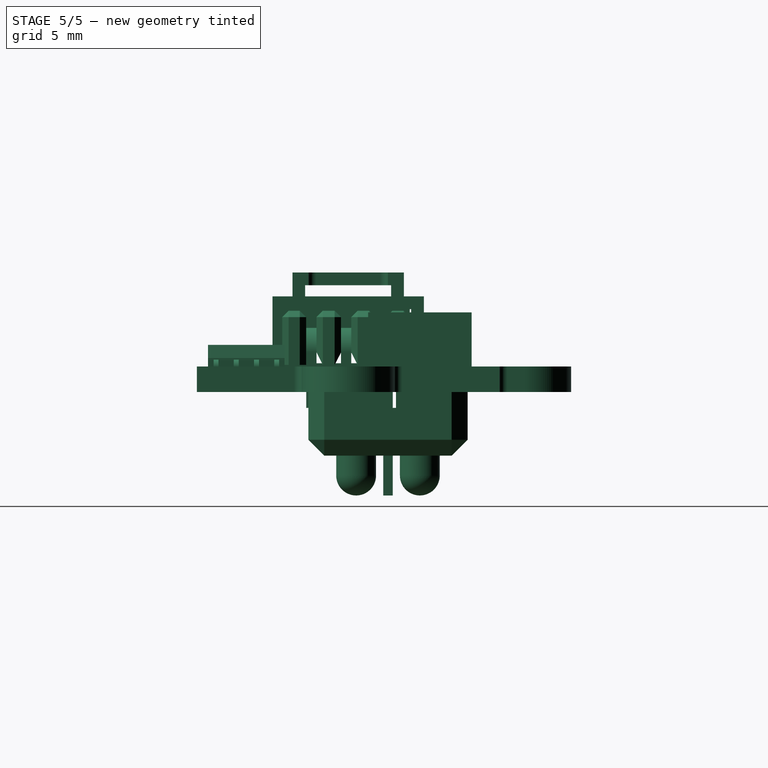
[diagram: stage 5 of 5 — right view after this stage's code; geometry added in this stage tinted green]
FEATURE [Part::FeaturePython] Array001  # Draft array (typed FeaturePython)
  Angle = 360
  ArrayType = 0
  Axis = (0,0,1)
  Base = -> Sweep
  Center = (0,0,0)
  IntervalX = (2.18,0,0)
  IntervalY = (0,1,0)
  IntervalZ = (0,0,1)
  NumberPolar = 1
  NumberX = 3
  NumberY = 1
  NumberZ = 1
FEATURE [Part::Box] Box004  label="Cubo004"
  Height = 3.4
  Length = 1.54
  Placement = pos=(-2.93,-3.3,0.2) rot=(0,0,1;0rad)
  Width = 2
FEATURE [Part::Chamfer] Chamfer002
  Base = -> Box004
  Edges = 5 edges r=0.4: [Edge2,Edge3,Edge6,Edge7,Edge12]
  Placement = pos=(3.2,1.5,1.5) rot=(0,0,1;0rad)
FEATURE [Part::Box] Box005  label="Cubo005"
  Height = 3.4
  Length = 1.54
  Placement = pos=(-2.93,-3.3,0.2) rot=(0,0,1;0rad)
  Width = 2
FEATURE [Part::Chamfer] Chamfer003
  Base = -> Box005
  Edges = 5 edges r=0.4: [Edge2,Edge3,Edge6,Edge7,Edge12]
  Placement = pos=(5.38,1.5,1.5) rot=(0,0,1;0rad)
FEATURE [Part::Box] Box008  label="Cubo008"
  Height = 3.5
  Length = 1.6
  Placement = pos=(-9.36,-4.13,1.7) rot=(0,0,1;0rad)
  Width = 8
FEATURE [Part::MultiFuse] Fusion001  label="Conectores1"
  Placement = pos=(-7,2,0) rot=(0,0,-1;1.5708rad)
  Shapes = -> [Array001,Chamfer002,Chamfer005,Chamfer003,Chamfer004]
FEATURE [Part::MultiFuse] Fusion002  label="Male-connector"
  Shapes = -> [Fusion001,Box008,Sketch003]
FEATURE [Part::Compound] Compound  label="octopus-IR-sensor-src"
  Links = -> [Fusion002,Fusion003,Fusion004,Fusion005,Cut006,Pad003]
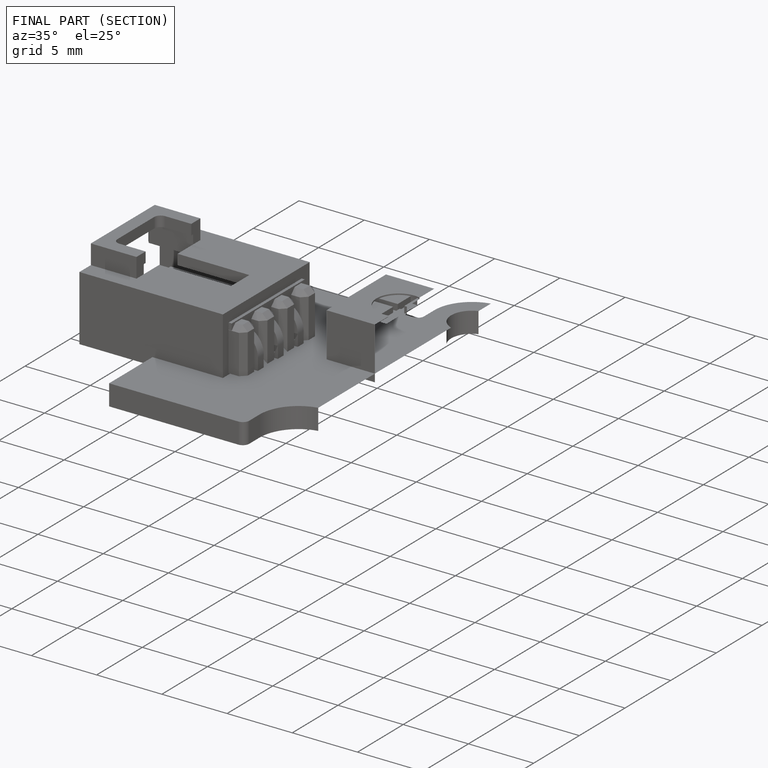
[diagram: finished part — half-section view (interior)]
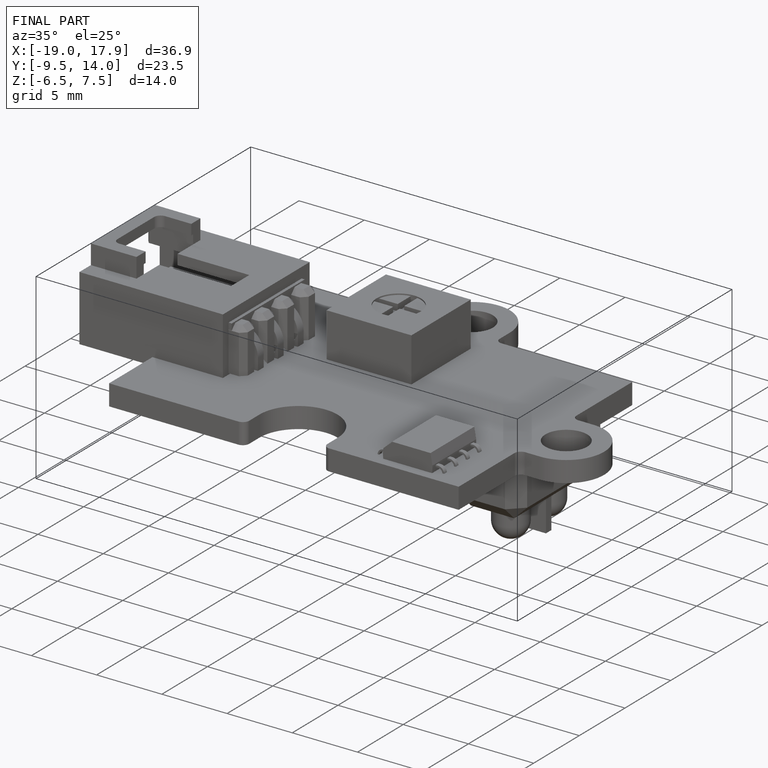
[diagram: finished part — iso view with bounding-box wireframe]
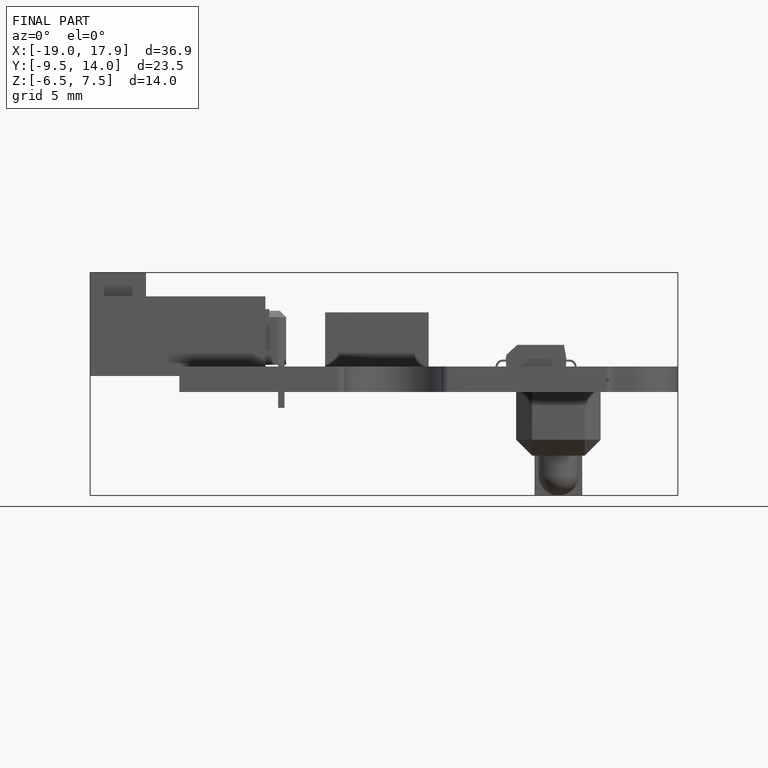
[diagram: finished part — front view with bounding-box wireframe]
